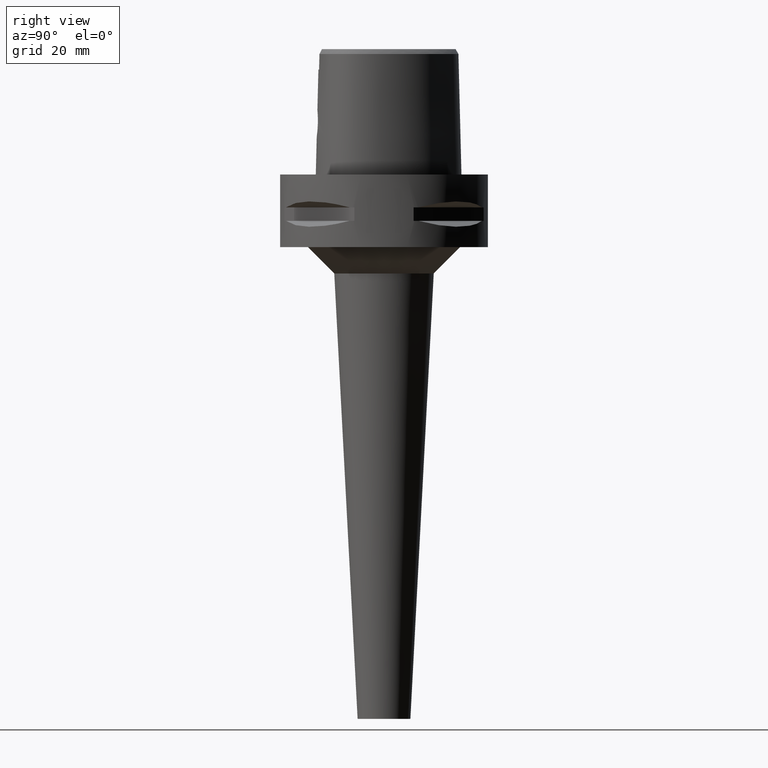
[diagram: clean part render]
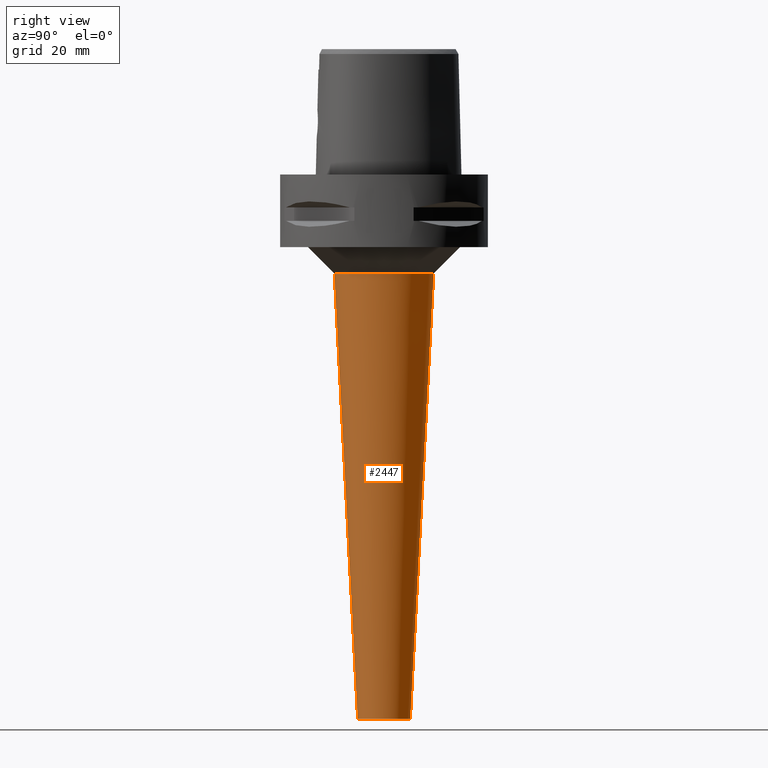
[diagram: same view with one face highlighted and labeled with its STEP entity id]
A machine part, right view. The second image highlights one B-rep face of the part: STEP entity #2447.
In plain terms, the highlighted conical surface has half-angle 3 deg.
Its self-contained STEP definition (entity closure, byte-faithful):
#539=DIRECTION('',(0.E0,-5.233595624294E-2,-9.986295347546E-1));
#540=VECTOR('',#539,1.351852667097E2);
#541=CARTESIAN_POINT('',(0.E0,1.507505020321E1,-3.E1));
#542=LINE('',#541,#540);
#546=CARTESIAN_POINT('',(0.E0,0.E0,-3.E1));
#547=DIRECTION('',(0.E0,0.E0,1.E0));
#548=DIRECTION('',(0.E0,-1.E0,0.E0));
#549=AXIS2_PLACEMENT_3D('',#546,#547,#548);
#554=DIRECTION('',(0.E0,5.233595624294E-2,-9.986295347546E-1));
#555=VECTOR('',#554,1.351852667097E2);
#556=CARTESIAN_POINT('',(0.E0,-1.507505020321E1,-3.E1));
#557=LINE('',#556,#555);
#561=CARTESIAN_POINT('',(0.E0,0.E0,-1.65E2));
#562=DIRECTION('',(0.E0,0.E0,1.E0));
#563=DIRECTION('',(0.E0,-1.E0,0.E0));
#564=AXIS2_PLACEMENT_3D('',#561,#562,#563);
#1522=CARTESIAN_POINT('',(0.E0,1.507505020321E1,-3.E1));
#1523=VERTEX_POINT('',#1522);
#1524=CARTESIAN_POINT('',(0.E0,-1.507505020321E1,-3.E1));
#1525=VERTEX_POINT('',#1524);
#1526=CARTESIAN_POINT('',(0.E0,8.000000000003E0,-1.65E2));
#1527=VERTEX_POINT('',#1526);
#1528=CARTESIAN_POINT('',(0.E0,-8.000000000005E0,-1.65E2));
#1529=VERTEX_POINT('',#1528);
#2433=CARTESIAN_POINT('',(0.E0,0.E0,-9.75E1));
#2434=DIRECTION('',(0.E0,0.E0,1.E0));
#2435=DIRECTION('',(0.E0,1.E0,0.E0));
#2436=AXIS2_PLACEMENT_3D('',#2433,#2434,#2435);
#2437=CONICAL_SURFACE('',#2436,1.153752510161E1,3.E0);
#2439=ORIENTED_EDGE('',*,*,#2438,.T.);
#2441=ORIENTED_EDGE('',*,*,#2440,.F.);
#2443=ORIENTED_EDGE('',*,*,#2442,.F.);
#2444=ORIENTED_EDGE('',*,*,#2426,.T.);
#2445=EDGE_LOOP('',(#2439,#2441,#2443,#2444));
#2446=FACE_OUTER_BOUND('',#2445,.F.);
#550=CIRCLE('',#549,1.507505020322E1);
#565=CIRCLE('',#564,8.000000000005E0);
#2426=EDGE_CURVE('',#1525,#1523,#550,.T.);
#2438=EDGE_CURVE('',#1523,#1527,#542,.T.);
#2440=EDGE_CURVE('',#1529,#1527,#565,.T.);
#2442=EDGE_CURVE('',#1525,#1529,#557,.T.);
#2447=ADVANCED_FACE('',(#2446),#2437,.T.);